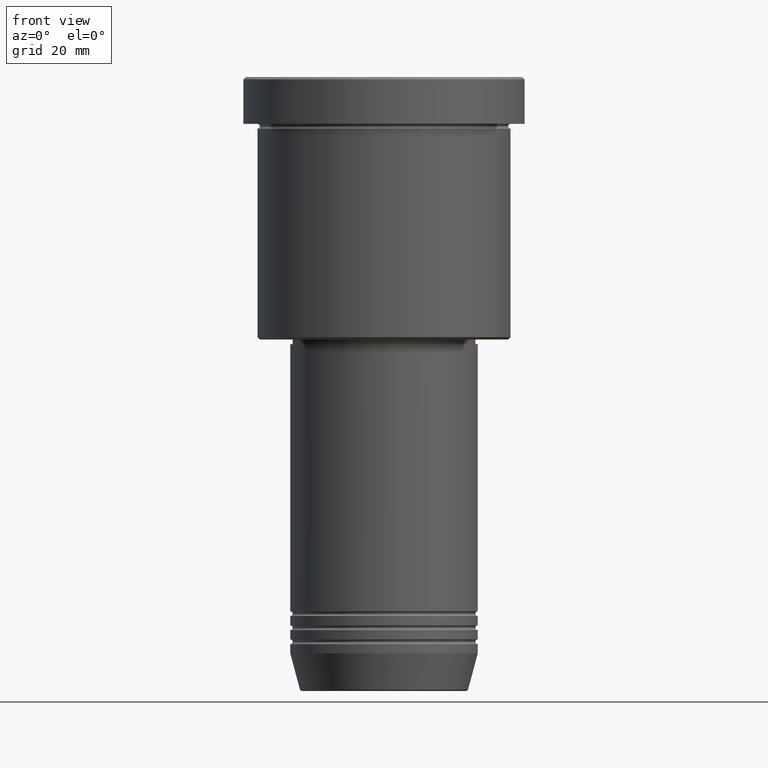
[diagram: clean part render]
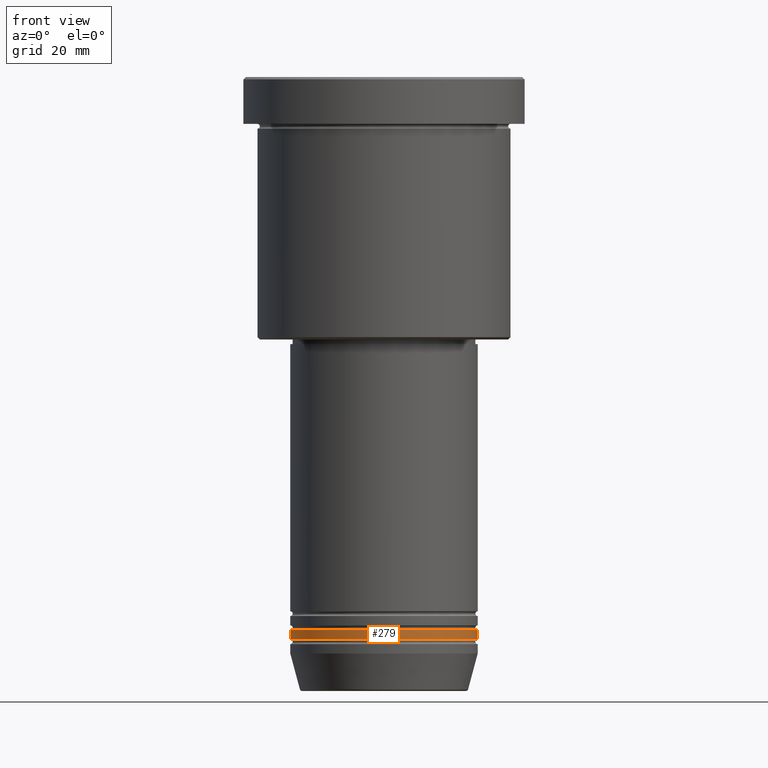
[diagram: same view with one face highlighted and labeled with its STEP entity id]
A machine part, front view. The second image highlights one B-rep face of the part: STEP entity #279.
In plain terms, the highlighted cylindrical surface (partial cylindrical patch) has radius 20 mm, axis along (-0, -0, 1).
Its self-contained STEP definition (entity closure, byte-faithful):
#48 = VECTOR ( 'NONE', #1045, 1000.000000000000000 ) ;
#111 = LINE ( 'NONE', #382, #318 ) ;
#118 = CARTESIAN_POINT ( 'NONE',  ( -20.00000000000000000, 2.449293598294706513E-15, -117.9999999999999858 ) ) ;
#129 = EDGE_CURVE ( 'NONE', #853, #464, #1178, .T. ) ;
#204 = ORIENTED_EDGE ( 'NONE', *, *, #666, .T. ) ;
#205 = AXIS2_PLACEMENT_3D ( 'NONE', #532, #834, #446 ) ;
#207 = DIRECTION ( 'NONE',  ( 1.000000000000000000, 0.000000000000000000, 0.000000000000000000 ) ) ;
#214 = DIRECTION ( 'NONE',  ( 1.000000000000000000, 0.000000000000000000, 0.000000000000000000 ) ) ;
#237 = LINE ( 'NONE', #403, #48 ) ;
#279 = ADVANCED_FACE ( 'NONE', ( #460 ), #357, .T. ) ;
#284 = AXIS2_PLACEMENT_3D ( 'NONE', #645, #1027, #214 ) ;
#302 = CARTESIAN_POINT ( 'NONE',  ( 20.00000000000000000, 0.000000000000000000, -119.9999999999999716 ) ) ;
#315 = VERTEX_POINT ( 'NONE', #118 ) ;
#318 = VECTOR ( 'NONE', #753, 1000.000000000000000 ) ;
#325 = ORIENTED_EDGE ( 'NONE', *, *, #577, .F. ) ;
#333 = EDGE_LOOP ( 'NONE', ( #365, #371, #204, #325 ) ) ;
#357 = CYLINDRICAL_SURFACE ( 'NONE', #1026, 20.00000000000000000 ) ;
#365 = ORIENTED_EDGE ( 'NONE', *, *, #806, .F. ) ;
#371 = ORIENTED_EDGE ( 'NONE', *, *, #129, .T. ) ;
#382 = CARTESIAN_POINT ( 'NONE',  ( -20.00000000000000000, 2.449293598294706513E-15, 0.000000000000000000 ) ) ;
#403 = CARTESIAN_POINT ( 'NONE',  ( 20.00000000000000000, 0.000000000000000000, 0.000000000000000000 ) ) ;
#446 = DIRECTION ( 'NONE',  ( 1.000000000000000000, 0.000000000000000000, 0.000000000000000000 ) ) ;
#460 = FACE_OUTER_BOUND ( 'NONE', #333, .T. ) ;
#464 = VERTEX_POINT ( 'NONE', #302 ) ;
#532 = CARTESIAN_POINT ( 'NONE',  ( 0.000000000000000000, 0.000000000000000000, -119.9999999999999716 ) ) ;
#577 = EDGE_CURVE ( 'NONE', #315, #908, #649, .T. ) ;
#645 = CARTESIAN_POINT ( 'NONE',  ( 0.000000000000000000, 0.000000000000000000, -117.9999999999999858 ) ) ;
#649 = CIRCLE ( 'NONE', #284, 20.00000000000000000 ) ;
#666 = EDGE_CURVE ( 'NONE', #464, #908, #237, .T. ) ;
#753 = DIRECTION ( 'NONE',  ( -0.000000000000000000, -0.000000000000000000, 1.000000000000000000 ) ) ;
#768 = CARTESIAN_POINT ( 'NONE',  ( -20.00000000000000000, 2.449293598294706513E-15, -119.9999999999999716 ) ) ;
#806 = EDGE_CURVE ( 'NONE', #853, #315, #111, .T. ) ;
#826 = DIRECTION ( 'NONE',  ( -0.000000000000000000, -0.000000000000000000, 1.000000000000000000 ) ) ;
#828 = CARTESIAN_POINT ( 'NONE',  ( 20.00000000000000000, 0.000000000000000000, -117.9999999999999858 ) ) ;
#834 = DIRECTION ( 'NONE',  ( -0.000000000000000000, -0.000000000000000000, 1.000000000000000000 ) ) ;
#835 = CARTESIAN_POINT ( 'NONE',  ( 0.000000000000000000, 0.000000000000000000, 0.000000000000000000 ) ) ;
#853 = VERTEX_POINT ( 'NONE', #768 ) ;
#908 = VERTEX_POINT ( 'NONE', #828 ) ;
#1026 = AXIS2_PLACEMENT_3D ( 'NONE', #835, #826, #207 ) ;
#1027 = DIRECTION ( 'NONE',  ( -0.000000000000000000, -0.000000000000000000, 1.000000000000000000 ) ) ;
#1045 = DIRECTION ( 'NONE',  ( -0.000000000000000000, -0.000000000000000000, 1.000000000000000000 ) ) ;
#1178 = CIRCLE ( 'NONE', #205, 20.00000000000000000 ) ;